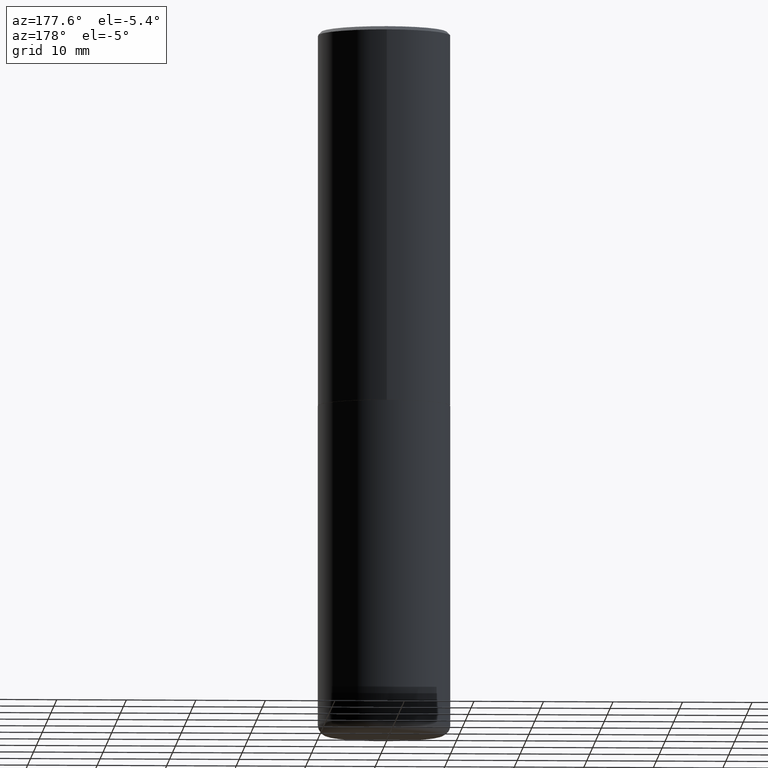
[diagram: clean part render]
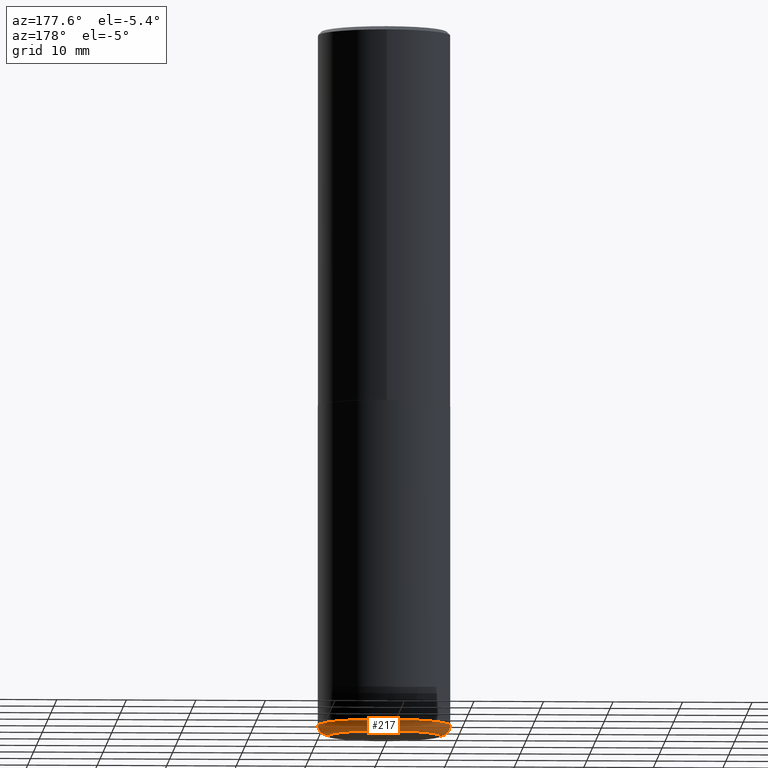
[diagram: same view with one face highlighted and labeled with its STEP entity id]
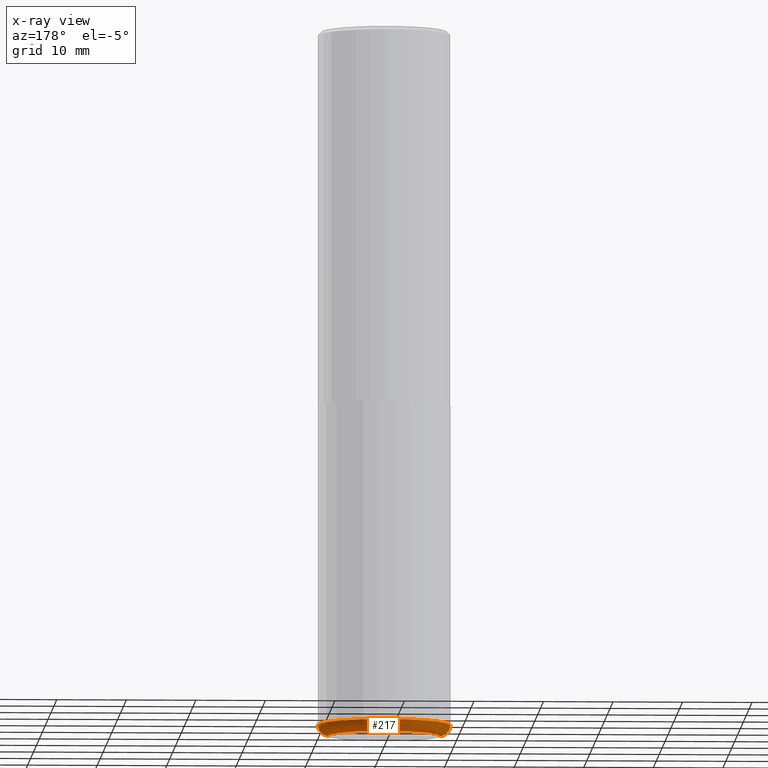
[diagram: x-ray of the same camera — body ghosted, the highlighted face saturated]
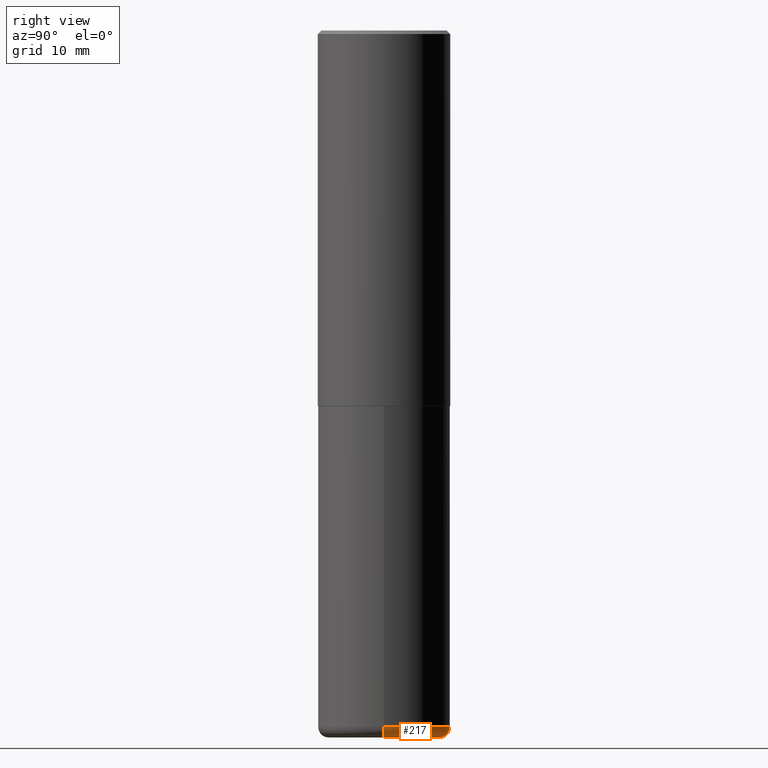
[diagram: same view with one face highlighted and labeled with its STEP entity id]
A machine part, auxiliary view. The second image highlights one B-rep face of the part: STEP entity #217.
The next image is the same camera in x-ray: the body ghosted, the highlighted face saturated — about 0% of this face is hidden behind the body in this view.
A second angle (right view) of the same face is appended — the face is thin or edge-on in the first view.
In plain terms, the highlighted toroidal blend (fillet) surface has major radius 8.001 mm and minor (blend) radius 1.524 mm.
Its self-contained STEP definition (entity closure, byte-faithful):
#3 = CIRCLE ( 'NONE', #218, 0.3150000000000000577 ) ;
#19 = EDGE_LOOP ( 'NONE', ( #368, #50, #21, #45 ) ) ;
#21 = ORIENTED_EDGE ( 'NONE', *, *, #412, .F. ) ;
#23 = VERTEX_POINT ( 'NONE', #250 ) ;
#38 = AXIS2_PLACEMENT_3D ( 'NONE', #183, #305, #408 ) ;
#44 = EDGE_CURVE ( 'NONE', #234, #168, #372, .T. ) ;
#45 = ORIENTED_EDGE ( 'NONE', *, *, #88, .F. ) ;
#50 = ORIENTED_EDGE ( 'NONE', *, *, #44, .T. ) ;
#70 = DIRECTION ( 'NONE',  ( 1.000000000000000000, -6.982962677686263555E-15, 4.883557194083111219E-29 ) ) ;
#79 = CARTESIAN_POINT ( 'NONE',  ( -0.3150000000000000577, -1.140980847683494193E-14, -4.000000000000000888 ) ) ;
#88 = EDGE_CURVE ( 'NONE', #139, #23, #163, .T. ) ;
#96 = TOROIDAL_SURFACE ( 'NONE', #380, 0.3150000000000000577, 0.06000000000000021289 ) ;
#120 = DIRECTION ( 'NONE',  ( 1.000000000000000000, -6.982962677686267499E-15, 0.000000000000000000 ) ) ;
#123 = CARTESIAN_POINT ( 'NONE',  ( -0.3750000000000001110, -1.109190121594161832E-14, -3.939999999999999947 ) ) ;
#139 = VERTEX_POINT ( 'NONE', #151 ) ;
#148 = EDGE_CURVE ( 'NONE', #139, #234, #3, .T. ) ;
#149 = CARTESIAN_POINT ( 'NONE',  ( 9.781875224740547508E-29, -1.396592535537258391E-14, -4.000000000000000888 ) ) ;
#151 = CARTESIAN_POINT ( 'NONE',  ( 0.3150000000000000577, -1.616555859884375729E-14, -4.000000000000000888 ) ) ;
#163 = CIRCLE ( 'NONE', #189, 0.06000000000000017819 ) ;
#168 = VERTEX_POINT ( 'NONE', #123 ) ;
#183 = CARTESIAN_POINT ( 'NONE',  ( 9.635147096369438236E-29, -1.375643647504199401E-14, -3.939999999999999947 ) ) ;
#184 = DIRECTION ( 'NONE',  ( 7.105427357601001859E-15, 1.000000000000000000, -3.491481338843145583E-15 ) ) ;
#186 = DIRECTION ( 'NONE',  ( -1.000000000000000000, 7.105427357601001859E-15, 0.000000000000000000 ) ) ;
#189 = AXIS2_PLACEMENT_3D ( 'NONE', #349, #249, #192 ) ;
#192 = DIRECTION ( 'NONE',  ( 1.000000000000000000, -6.982962677686279332E-15, 0.000000000000000000 ) ) ;
#193 = CARTESIAN_POINT ( 'NONE',  ( 9.635147096369438236E-29, -1.375643647504199401E-14, -3.939999999999999947 ) ) ;
#217 = ADVANCED_FACE ( 'NONE', ( #223 ), #96, .T. ) ;
#218 = AXIS2_PLACEMENT_3D ( 'NONE', #149, #413, #120 ) ;
#223 = FACE_OUTER_BOUND ( 'NONE', #19, .T. ) ;
#234 = VERTEX_POINT ( 'NONE', #79 ) ;
#249 = DIRECTION ( 'NONE',  ( -6.982962677686266711E-15, -1.000000000000000000, 3.491481338843145583E-15 ) ) ;
#250 = CARTESIAN_POINT ( 'NONE',  ( 0.3750000000000001110, -1.637504747917434403E-14, -3.939999999999999947 ) ) ;
#266 = AXIS2_PLACEMENT_3D ( 'NONE', #320, #184, #186 ) ;
#305 = DIRECTION ( 'NONE',  ( -2.445468806185136597E-29, 3.491481338843145583E-15, 1.000000000000000000 ) ) ;
#320 = CARTESIAN_POINT ( 'NONE',  ( -0.3150000000000000577, -1.151822685739767881E-14, -3.939999999999999947 ) ) ;
#330 = CIRCLE ( 'NONE', #38, 0.3750000000000000555 ) ;
#349 = CARTESIAN_POINT ( 'NONE',  ( 0.3150000000000000577, -1.595606971851316740E-14, -3.939999999999999947 ) ) ;
#368 = ORIENTED_EDGE ( 'NONE', *, *, #148, .T. ) ;
#372 = CIRCLE ( 'NONE', #266, 0.06000000000000017819 ) ;
#380 = AXIS2_PLACEMENT_3D ( 'NONE', #193, #392, #70 ) ;
#392 = DIRECTION ( 'NONE',  ( -2.445468806185136597E-29, 3.491481338843145583E-15, 1.000000000000000000 ) ) ;
#408 = DIRECTION ( 'NONE',  ( 1.000000000000000000, -6.982962677686266711E-15, 0.000000000000000000 ) ) ;
#412 = EDGE_CURVE ( 'NONE', #23, #168, #330, .T. ) ;
#413 = DIRECTION ( 'NONE',  ( -2.445468806185136597E-29, 3.491481338843145583E-15, 1.000000000000000000 ) ) ;